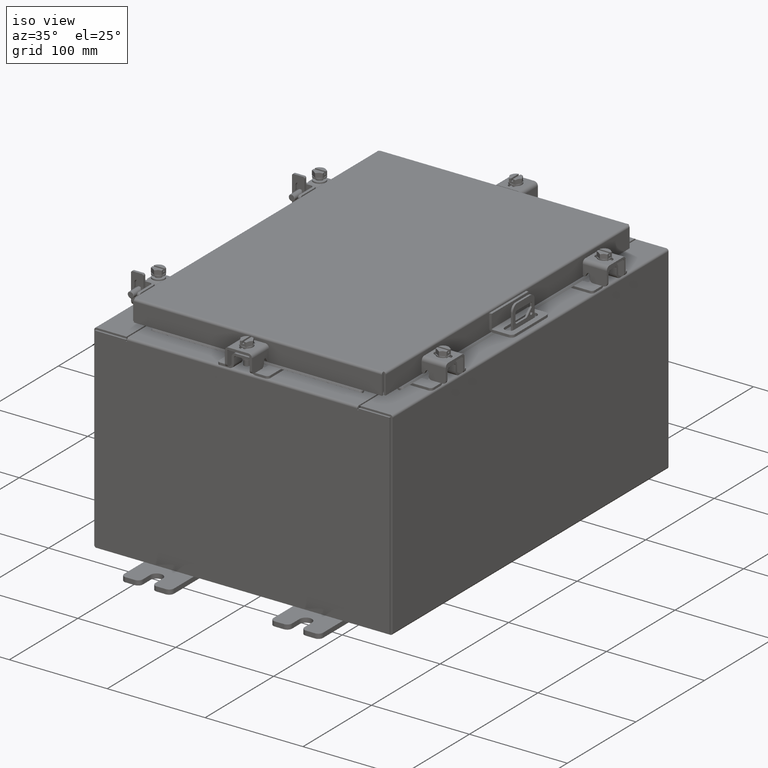
[diagram: clean part render]
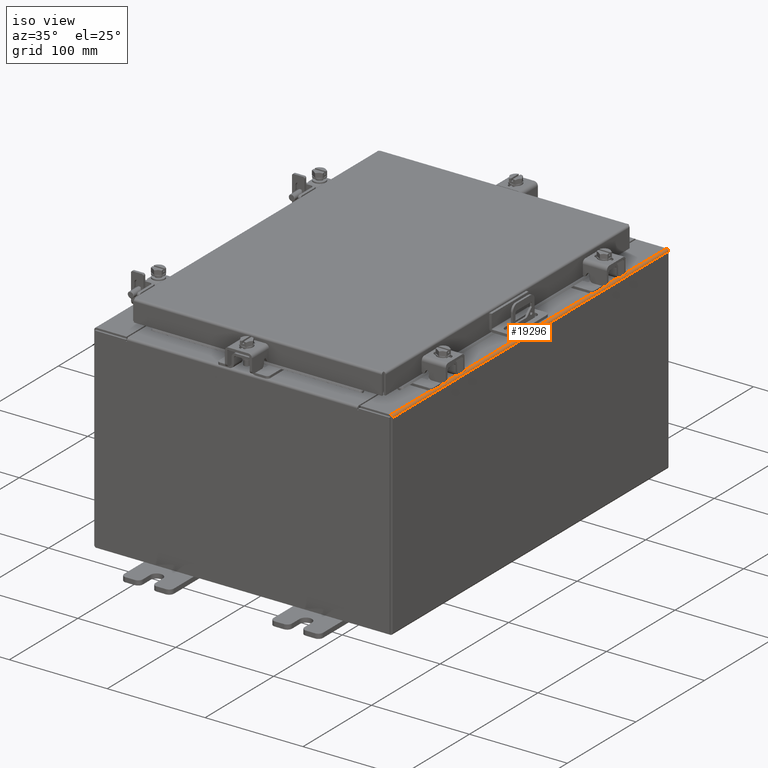
[diagram: same view with one face highlighted and labeled with its STEP entity id]
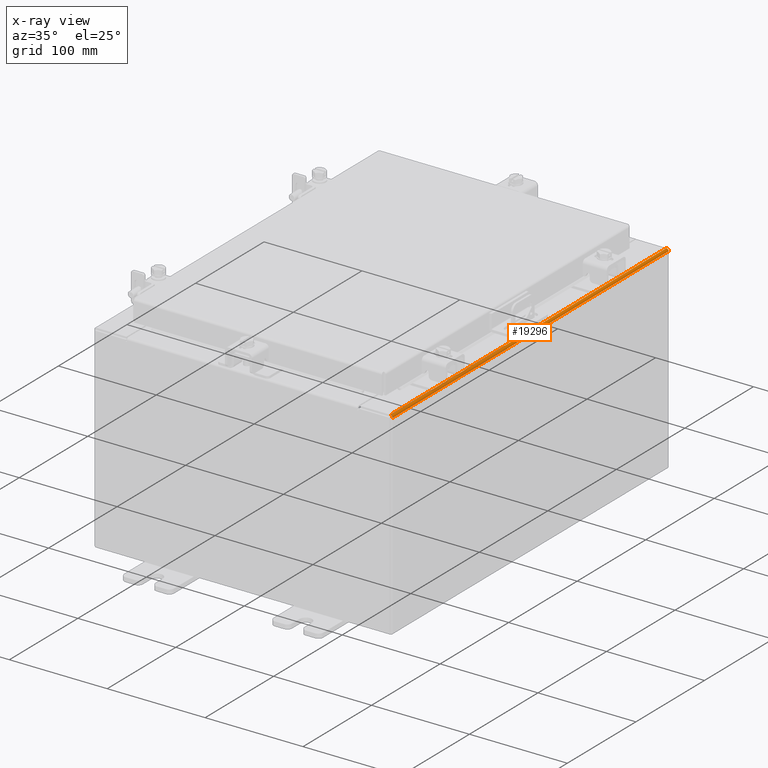
[diagram: x-ray of the same camera — body ghosted, the highlighted face saturated]
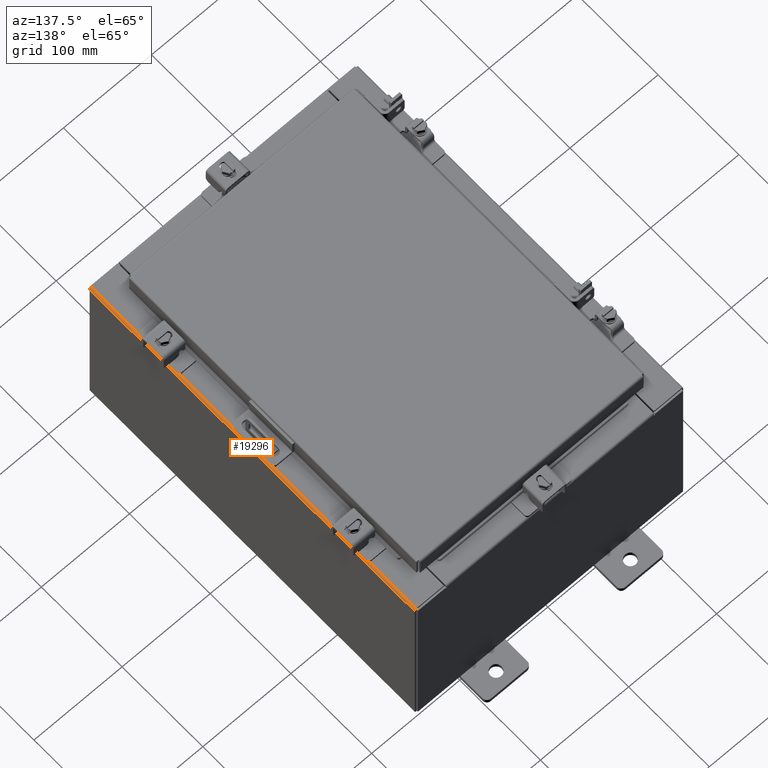
[diagram: same view with one face highlighted and labeled with its STEP entity id]
A machine part, iso view. The second image highlights one B-rep face of the part: STEP entity #19296.
The next image is the same camera in x-ray: the body ghosted, the highlighted face saturated — about 0% of this face is hidden behind the body in this view.
A second angle (auxiliary view) of the same face is appended — the face is thin or edge-on in the first view.
In plain terms, the highlighted cylindrical surface (edge-blend (fillet) strip) has radius 2.2276 mm, axis along (0, 1, 0).
Its self-contained STEP definition (entity closure, byte-faithful):
#351 = VECTOR ( 'NONE', #1515, 39.37007874015748100 ) ;
#846 = EDGE_CURVE ( 'NONE', #11394, #3355, #11310, .T. ) ;
#1066 = CARTESIAN_POINT ( 'NONE',  ( 5.912300000000027600, 7.925300000000000900, 7.837599999999999200 ) ) ;
#1354 = LINE ( 'NONE', #11142, #351 ) ;
#1515 = DIRECTION ( 'NONE',  ( -6.893992640440775600E-017, -1.000000000000000000, 6.893992640440816300E-017 ) ) ;
#1881 = VECTOR ( 'NONE', #11953, 39.37007874015748100 ) ;
#1887 = CARTESIAN_POINT ( 'NONE',  ( 6.000000000000026600, -7.925300000000000900, 7.837599999999998300 ) ) ;
#2396 = ORIENTED_EDGE ( 'NONE', *, *, #2550, .F. ) ;
#2550 = EDGE_CURVE ( 'NONE', #9695, #14917, #18655, .T. ) ;
#3310 = ORIENTED_EDGE ( 'NONE', *, *, #20162, .F. ) ;
#3355 = VERTEX_POINT ( 'NONE', #3602 ) ;
#3602 = CARTESIAN_POINT ( 'NONE',  ( 6.000000000000029300, 7.925300000000000900, 7.837599999999992100 ) ) ;
#3849 = CARTESIAN_POINT ( 'NONE',  ( 6.000000000000029300, 7.925300000000000900, 7.837599999999992100 ) ) ;
#4489 = AXIS2_PLACEMENT_3D ( 'NONE', #16276, #6587, #17890 ) ;
#5182 = ORIENTED_EDGE ( 'NONE', *, *, #13718, .T. ) ;
#5212 = CARTESIAN_POINT ( 'NONE',  ( 5.912300000000027600, 7.925300000000000900, 7.837599999999999200 ) ) ;
#5924 = FACE_OUTER_BOUND ( 'NONE', #17399, .T. ) ;
#6365 = ORIENTED_EDGE ( 'NONE', *, *, #846, .F. ) ;
#6470 = AXIS2_PLACEMENT_3D ( 'NONE', #5212, #8384, #16521 ) ;
#6587 = DIRECTION ( 'NONE',  ( -0.0000000000000000000, -1.000000000000000000, -0.0000000000000000000 ) ) ;
#8384 = DIRECTION ( 'NONE',  ( 0.0000000000000000000, 1.000000000000000000, 0.0000000000000000000 ) ) ;
#9644 = CARTESIAN_POINT ( 'NONE',  ( 5.912300000000027600, -7.925300000000000900, 7.925300000000000900 ) ) ;
#9685 = CYLINDRICAL_SURFACE ( 'NONE', #6470, 0.08770000000000136000 ) ;
#9695 = VERTEX_POINT ( 'NONE', #1887 ) ;
#11142 = CARTESIAN_POINT ( 'NONE',  ( 5.912300000000026800, -7.925300000000000900, 7.925300000000000900 ) ) ;
#11310 = CIRCLE ( 'NONE', #17331, 0.08770000000000136000 ) ;
#11394 = VERTEX_POINT ( 'NONE', #12167 ) ;
#11953 = DIRECTION ( 'NONE',  ( -0.0000000000000000000, -1.000000000000000000, -0.0000000000000000000 ) ) ;
#12167 = CARTESIAN_POINT ( 'NONE',  ( 5.912300000000027600, 7.925300000000000900, 7.925300000000000000 ) ) ;
#13718 = EDGE_CURVE ( 'NONE', #11394, #14917, #1354, .T. ) ;
#14917 = VERTEX_POINT ( 'NONE', #9644 ) ;
#16276 = CARTESIAN_POINT ( 'NONE',  ( 5.912300000000027600, -7.925300000000000900, 7.837599999999999200 ) ) ;
#16521 = DIRECTION ( 'NONE',  ( 1.245996804407854400E-014, 0.0000000000000000000, 1.000000000000000000 ) ) ;
#17331 = AXIS2_PLACEMENT_3D ( 'NONE', #1066, #17448, #17737 ) ;
#17399 = EDGE_LOOP ( 'NONE', ( #3310, #6365, #5182, #2396 ) ) ;
#17448 = DIRECTION ( 'NONE',  ( 0.0000000000000000000, 1.000000000000000000, 0.0000000000000000000 ) ) ;
#17737 = DIRECTION ( 'NONE',  ( 0.0000000000000000000, 0.0000000000000000000, 1.000000000000000000 ) ) ;
#17890 = DIRECTION ( 'NONE',  ( 0.0000000000000000000, 0.0000000000000000000, 1.000000000000000000 ) ) ;
#18655 = CIRCLE ( 'NONE', #4489, 0.08770000000000136000 ) ;
#19014 = LINE ( 'NONE', #3849, #1881 ) ;
#19296 = ADVANCED_FACE ( 'NONE', ( #5924 ), #9685, .T. ) ;
#20162 = EDGE_CURVE ( 'NONE', #3355, #9695, #19014, .T. ) ;